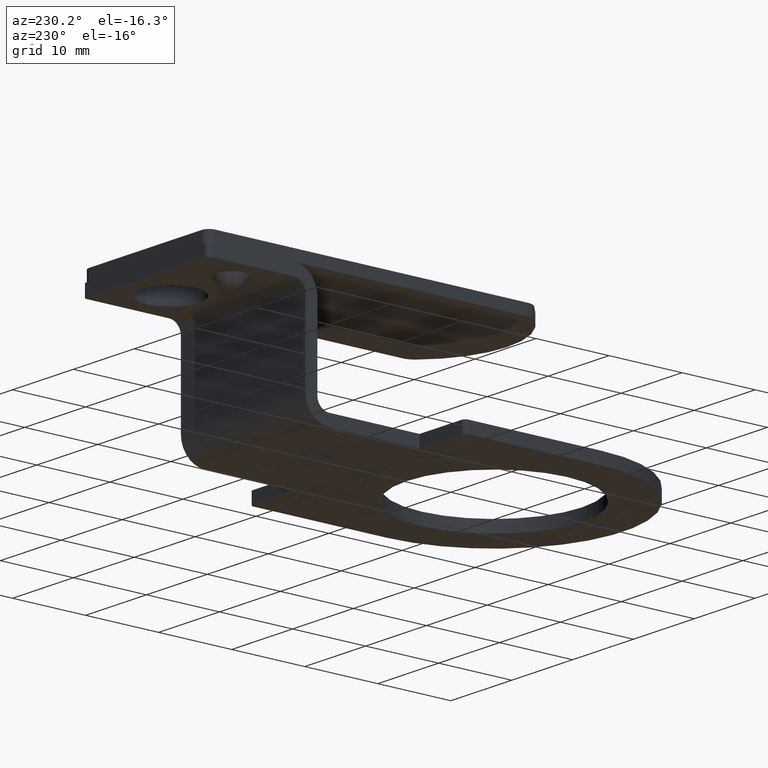
[diagram: clean part render]
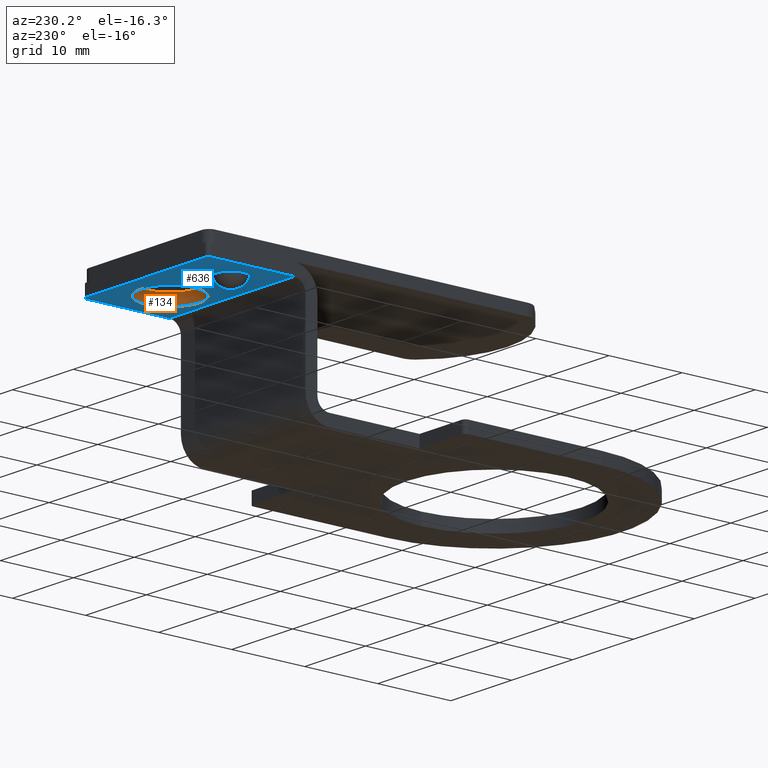
[diagram: same view with the hole feature highlighted: cylindrical wall and planar end face, labeled with their STEP entity ids]
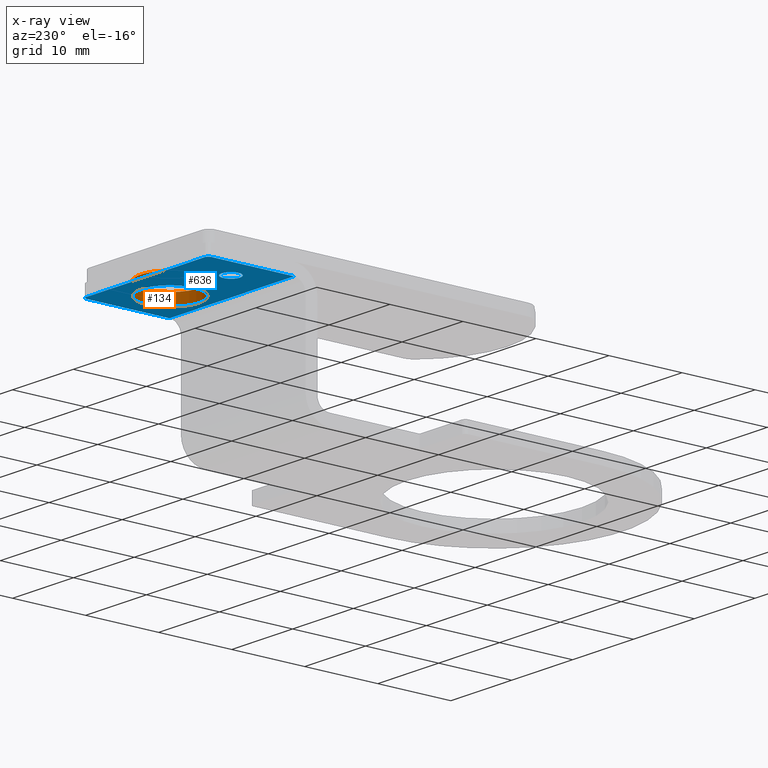
[diagram: x-ray of the same camera — body ghosted, the hole faces saturated]
A machine part, auxiliary view. The highlighted faces form one hole feature of diameter 8 mm: the cylindrical wall (entity #134, orange) and its adjacent planar end face (entity #636, blue) — they share a circular edge in the B-rep.
The next image is the same camera in x-ray (body ghosted, the hole faces saturated) — the bore reads through the body.
Wall:
#107=CARTESIAN_POINT('',(6.526965155120048,22.991234150720000,17.250000000000000));
#108=DIRECTION('',(0.0,0.0,-1.0));
#109=DIRECTION('',(-1.0,0.0,0.0));
#110=AXIS2_PLACEMENT_3D('',#107,#108,#109);
#111=CYLINDRICAL_SURFACE('',#110,4.0);
#112=CARTESIAN_POINT('',(10.526965155120047,22.991234150720000,15.649999999999999));
#113=VERTEX_POINT('',#112);
#114=CARTESIAN_POINT('',(6.526965155120048,22.991234150720000,15.649999999999999));
#115=DIRECTION('',(0.0,0.0,1.0));
#116=DIRECTION('',(-1.0,0.0,0.0));
#117=AXIS2_PLACEMENT_3D('',#114,#115,#116);
#118=CIRCLE('',#117,4.0);
#119=EDGE_CURVE('',#113,#113,#118,.T.);
#120=ORIENTED_EDGE('',*,*,#119,.F.);
#121=EDGE_LOOP('',(#120));
#122=FACE_OUTER_BOUND('',#121,.T.);
#123=CARTESIAN_POINT('',(10.526965155120047,22.991234150720000,17.250000000000000));
#124=VERTEX_POINT('',#123);
#125=CARTESIAN_POINT('',(6.526965155120048,22.991234150720000,17.250000000000000));
#126=DIRECTION('',(0.0,0.0,-1.0));
#127=DIRECTION('',(-1.0,0.0,0.0));
#128=AXIS2_PLACEMENT_3D('',#125,#126,#127);
#129=CIRCLE('',#128,4.0);
#130=EDGE_CURVE('',#124,#124,#129,.T.);
#131=ORIENTED_EDGE('',*,*,#130,.F.);
#132=EDGE_LOOP('',(#131));
#133=FACE_BOUND('',#132,.T.);
#134=ADVANCED_FACE('',(#122,#133),#111,.F.);
End face:
#112=CARTESIAN_POINT('',(10.526965155120047,22.991234150720000,15.649999999999999));
#113=VERTEX_POINT('',#112);
#114=CARTESIAN_POINT('',(6.526965155120048,22.991234150720000,15.649999999999999));
#115=DIRECTION('',(0.0,0.0,1.0));
#116=DIRECTION('',(-1.0,0.0,0.0));
#117=AXIS2_PLACEMENT_3D('',#114,#115,#116);
#118=CIRCLE('',#117,4.0);
#119=EDGE_CURVE('',#113,#113,#118,.T.);
#140=CARTESIAN_POINT('',(-2.223034844879960,22.991234150720004,15.649999999999999));
#141=VERTEX_POINT('',#140);
#142=CARTESIAN_POINT('',(-3.473034844879960,22.991234150720004,15.649999999999999));
#143=DIRECTION('',(0.0,0.0,1.0));
#144=DIRECTION('',(-1.0,0.0,0.0));
#145=AXIS2_PLACEMENT_3D('',#142,#143,#144);
#146=CIRCLE('',#145,1.250000000000000);
#147=EDGE_CURVE('',#141,#141,#146,.T.);
#337=CARTESIAN_POINT('',(-6.973034844879960,29.491234150719997,15.649999999999999));
#338=VERTEX_POINT('',#337);
#345=CARTESIAN_POINT('',(-7.473034844879960,28.991234150719993,15.649999999999999));
#346=VERTEX_POINT('',#345);
#347=CARTESIAN_POINT('',(-6.973034844879960,28.991234150719993,15.649999999999999));
#348=DIRECTION('',(0.0,0.0,1.0));
#349=DIRECTION('',(-0.707106781186543,0.707106781186552,0.0));
#350=AXIS2_PLACEMENT_3D('',#347,#348,#349);
#351=CIRCLE('',#350,0.500000000000000);
#352=EDGE_CURVE('',#338,#346,#351,.T.);
#377=CARTESIAN_POINT('',(12.526965155120049,29.491234150719997,15.649999999999999));
#378=VERTEX_POINT('',#377);
#385=CARTESIAN_POINT('',(-6.973034844879960,29.491234150719997,15.649999999999999));
#386=DIRECTION('',(1.0,0.0,0.0));
#387=VECTOR('',#386,19.500000000000007);
#388=LINE('',#385,#387);
#389=EDGE_CURVE('',#338,#378,#388,.T.);
#446=CARTESIAN_POINT('',(13.026965155120047,28.991234150719993,15.649999999999999));
#447=VERTEX_POINT('',#446);
#448=CARTESIAN_POINT('',(12.526965155120049,28.991234150719993,15.649999999999999));
#449=DIRECTION('',(0.0,0.0,1.0));
#450=DIRECTION('',(0.707106781186541,0.707106781186554,0.0));
#451=AXIS2_PLACEMENT_3D('',#448,#449,#450);
#452=CIRCLE('',#451,0.500000000000000);
#453=EDGE_CURVE('',#447,#378,#452,.T.);
#531=CARTESIAN_POINT('',(13.026965155120047,17.691234150720000,15.650000000000002));
#532=VERTEX_POINT('',#531);
#540=CARTESIAN_POINT('',(13.026965155120047,28.991234150719993,15.649999999999999));
#541=DIRECTION('',(0.0,-1.0,0.0));
#542=VECTOR('',#541,11.299999999999994);
#543=LINE('',#540,#542);
#544=EDGE_CURVE('',#447,#532,#543,.T.);
#605=CARTESIAN_POINT('',(-7.473034844879960,29.491234150719997,15.649999999999999));
#606=DIRECTION('',(0.0,0.0,-1.0));
#607=DIRECTION('',(-1.0,0.0,0.0));
#608=AXIS2_PLACEMENT_3D('',#605,#606,#607);
#609=PLANE('',#608);
#610=ORIENTED_EDGE('',*,*,#352,.F.);
#611=ORIENTED_EDGE('',*,*,#389,.T.);
#612=ORIENTED_EDGE('',*,*,#453,.F.);
#613=ORIENTED_EDGE('',*,*,#544,.T.);
#614=CARTESIAN_POINT('',(-7.473034844879960,17.691234150719989,15.650000000000002));
#615=VERTEX_POINT('',#614);
#616=CARTESIAN_POINT('',(-7.473034844879960,17.691234150719989,15.650000000000002));
#617=DIRECTION('',(1.0,0.0,0.0));
#618=VECTOR('',#617,20.500000000000007);
#619=LINE('',#616,#618);
#620=EDGE_CURVE('',#615,#532,#619,.T.);
#621=ORIENTED_EDGE('',*,*,#620,.F.);
#622=CARTESIAN_POINT('',(-7.473034844879960,17.691234150719989,15.650000000000002));
#623=DIRECTION('',(0.0,1.0,0.0));
#624=VECTOR('',#623,11.300000000000004);
#625=LINE('',#622,#624);
#626=EDGE_CURVE('',#615,#346,#625,.T.);
#627=ORIENTED_EDGE('',*,*,#626,.T.);
#628=EDGE_LOOP('',(#610,#611,#612,#613,#621,#627));
#629=FACE_OUTER_BOUND('',#628,.T.);
#630=ORIENTED_EDGE('',*,*,#119,.T.);
#631=EDGE_LOOP('',(#630));
#632=FACE_BOUND('',#631,.T.);
#633=ORIENTED_EDGE('',*,*,#147,.T.);
#634=EDGE_LOOP('',(#633));
#635=FACE_BOUND('',#634,.T.);
#636=ADVANCED_FACE('',(#629,#632,#635),#609,.T.);